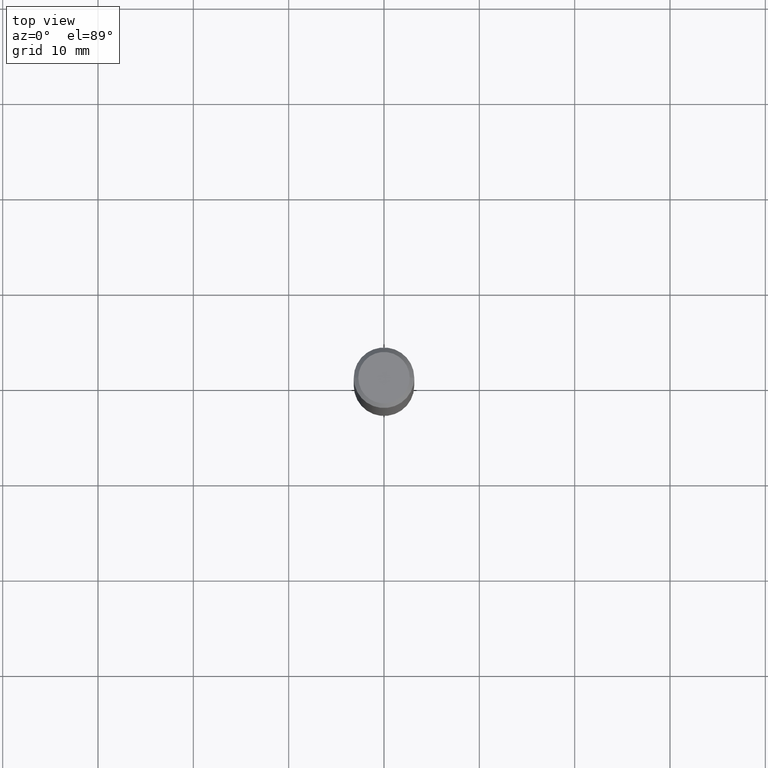
[diagram: clean part render]
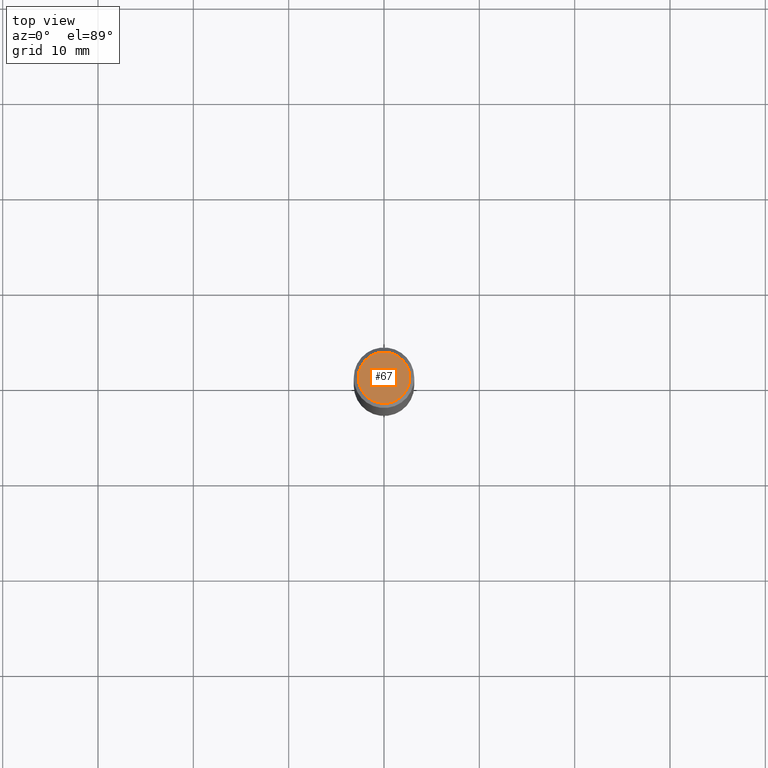
[diagram: same view with one face highlighted and labeled with its STEP entity id]
A machine part, top view. The second image highlights one B-rep face of the part: STEP entity #67.
In plain terms, the highlighted planar face has unit normal (0, -0, -1).
Its self-contained STEP definition (entity closure, byte-faithful):
#1 = DIRECTION ( 'NONE',  ( 2.438088387897960049E-29, -3.491481338843145188E-15, -1.000000000000000000 ) ) ;
#28 = CARTESIAN_POINT ( 'NONE',  ( 0.1062499999999999972, -8.259777185439880671E-16, -2.602374448187577153E-17 ) ) ;
#58 = CARTESIAN_POINT ( 'NONE',  ( -0.1062499999999999972, 7.746724220558198188E-16, -2.602374448188655674E-17 ) ) ;
#67 = ADVANCED_FACE ( 'NONE', ( #451 ), #237, .F. ) ;
#103 = VERTEX_POINT ( 'NONE', #58 ) ;
#114 = VERTEX_POINT ( 'NONE', #28 ) ;
#143 = EDGE_LOOP ( 'NONE', ( #396, #406 ) ) ;
#154 = EDGE_CURVE ( 'NONE', #103, #114, #305, .T. ) ;
#183 = DIRECTION ( 'NONE',  ( 1.000000000000000000, -6.982962677686266711E-15, 4.877714189860772023E-29 ) ) ;
#194 = AXIS2_PLACEMENT_3D ( 'NONE', #382, #1, #272 ) ;
#195 = AXIS2_PLACEMENT_3D ( 'NONE', #389, #245, #183 ) ;
#221 = CARTESIAN_POINT ( 'NONE',  ( 6.364025535057318316E-46, -9.086141822531067035E-32, -2.602374448188125350E-17 ) ) ;
#237 = PLANE ( 'NONE',  #194 ) ;
#245 = DIRECTION ( 'NONE',  ( -2.445468806185136597E-29, 3.491481338843145583E-15, 1.000000000000000000 ) ) ;
#272 = DIRECTION ( 'NONE',  ( -1.000000000000000000, 6.982962677686265922E-15, -4.876176775795935793E-29 ) ) ;
#298 = EDGE_CURVE ( 'NONE', #114, #103, #342, .T. ) ;
#305 = CIRCLE ( 'NONE', #450, 0.1062499999999999972 ) ;
#329 = DIRECTION ( 'NONE',  ( 1.000000000000000000, -6.982962677686266711E-15, 4.877714189860772023E-29 ) ) ;
#342 = CIRCLE ( 'NONE', #195, 0.1062499999999999972 ) ;
#382 = CARTESIAN_POINT ( 'NONE',  ( 3.182012767528659158E-46, -4.543070911265533518E-32, -1.301187224094062675E-17 ) ) ;
#389 = CARTESIAN_POINT ( 'NONE',  ( 6.364025535057318316E-46, -9.086141822531067035E-32, -2.602374448188125350E-17 ) ) ;
#396 = ORIENTED_EDGE ( 'NONE', *, *, #154, .T. ) ;
#406 = ORIENTED_EDGE ( 'NONE', *, *, #298, .T. ) ;
#424 = DIRECTION ( 'NONE',  ( -2.445468806185136597E-29, 3.491481338843145583E-15, 1.000000000000000000 ) ) ;
#450 = AXIS2_PLACEMENT_3D ( 'NONE', #221, #424, #329 ) ;
#451 = FACE_OUTER_BOUND ( 'NONE', #143, .T. ) ;